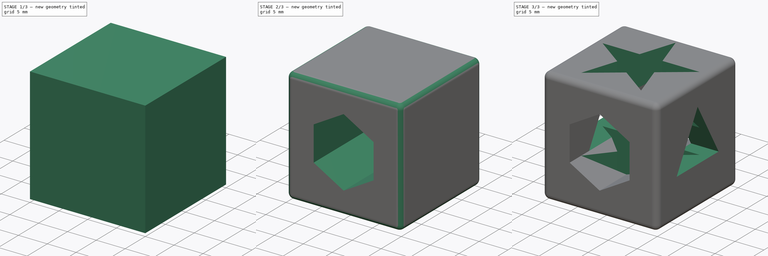
[diagram: build sequence overview — one tinted view per stage of 3, left to right]
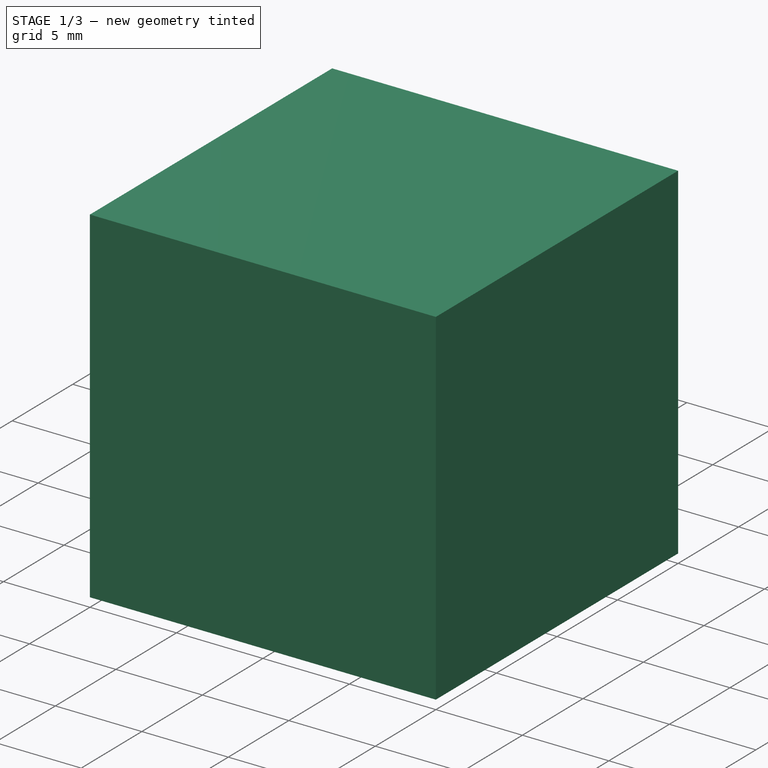
[diagram: stage 1 of 3 — iso view after this stage's code; geometry added in this stage tinted green]
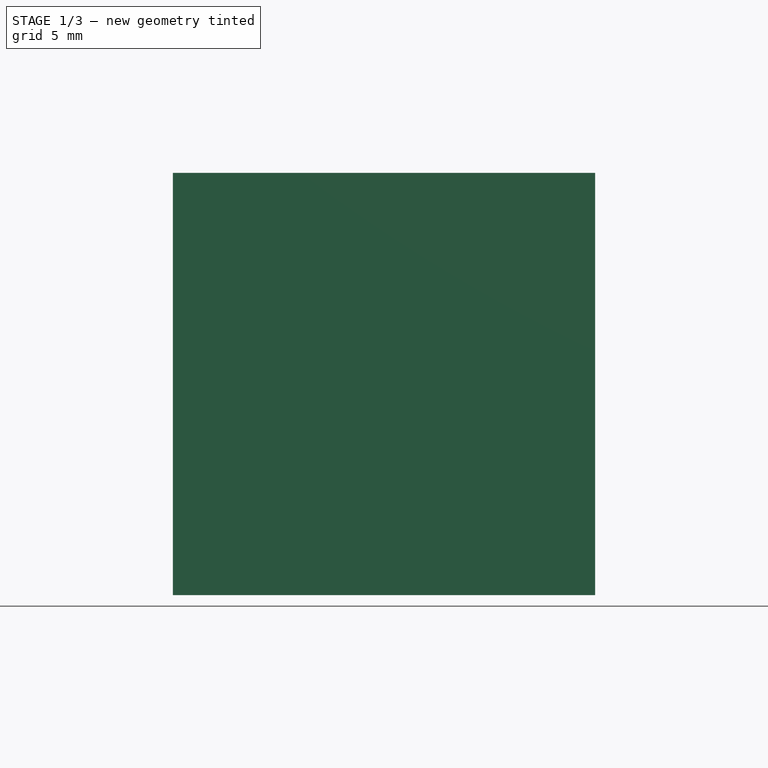
[diagram: stage 1 of 3 — front view after this stage's code; geometry added in this stage tinted green]
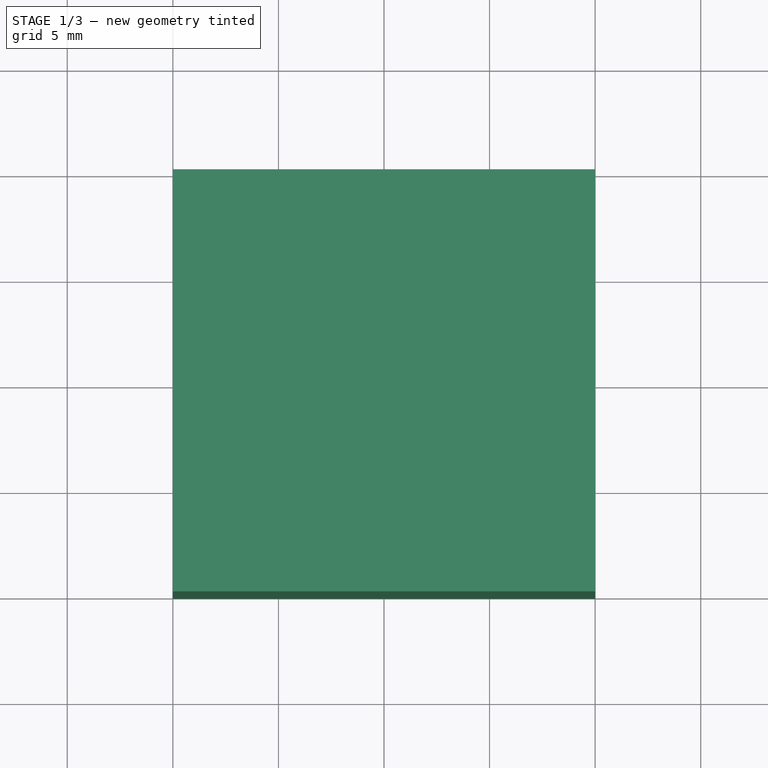
[diagram: stage 1 of 3 — top view after this stage's code; geometry added in this stage tinted green]
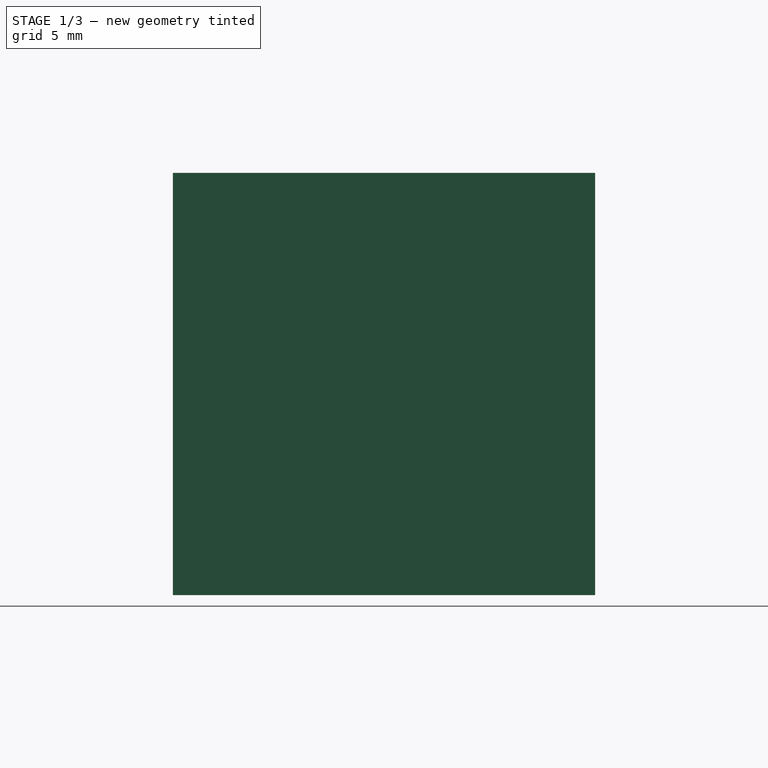
[diagram: stage 1 of 3 — right view after this stage's code; geometry added in this stage tinted green]
FCSTD DOCUMENT  (FreeCAD 0.17RUnknown)
Label: test101
License: All rights reserved
LicenseURL: http://en.wikipedia.org/wiki/All_rights_reserved
objects: Sketcher::SketchObject×3, PartDesign::Pocket×3, Part::Box×1, PartDesign::FeatureBase×1, PartDesign::Fillet×1, PartDesign::Body×1
note: 13 computed .brp shape members not serialized (recipe doc carries the construction recipe); baked Part::Feature solids carry a one-line shape summary decoded from their .brp

FEATURE [Part::Box] Box  label="Cube"
  AttacherType = Attacher::AttachEngine3D
  Height = 20
  Length = 20
  Width = 20
FEATURE [PartDesign::FeatureBase] BaseFeature
  BaseFeature = -> Box
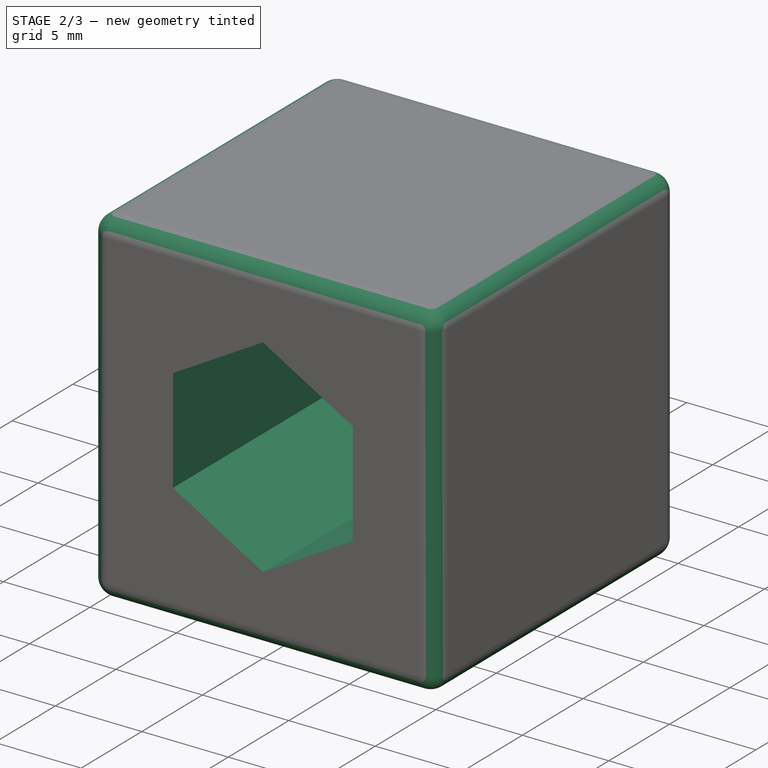
[diagram: stage 2 of 3 — iso view after this stage's code; geometry added in this stage tinted green]
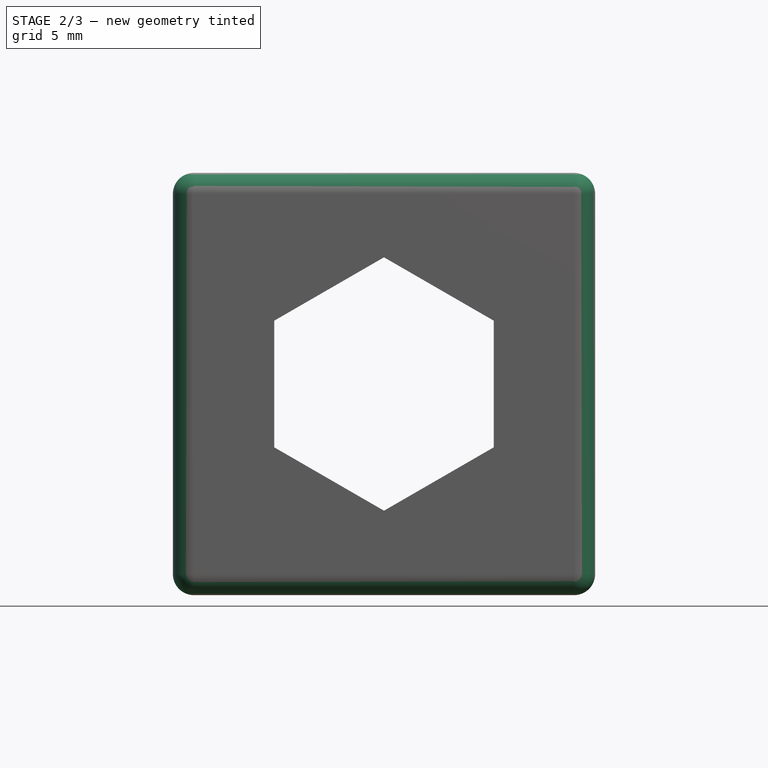
[diagram: stage 2 of 3 — front view after this stage's code; geometry added in this stage tinted green]
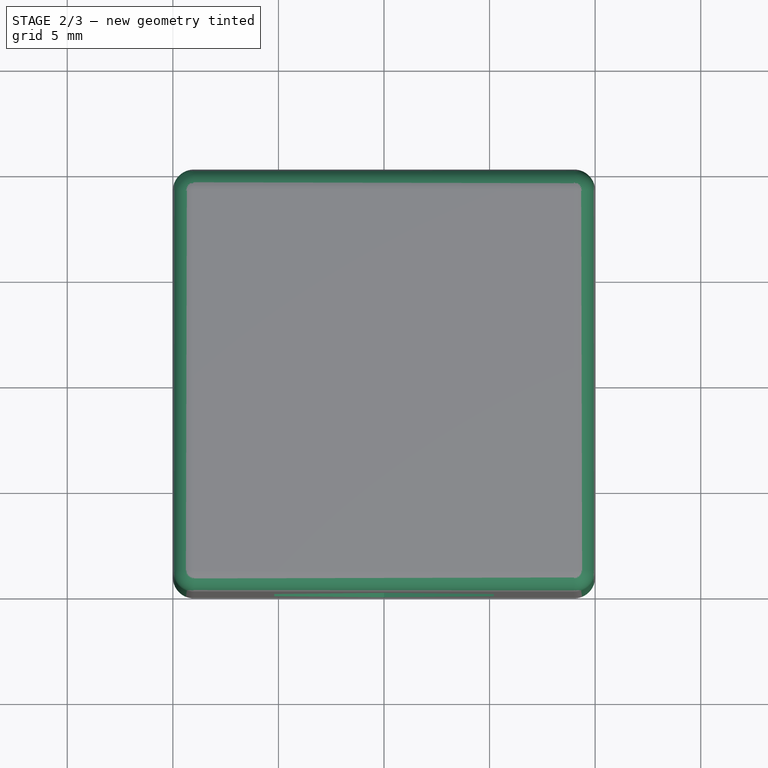
[diagram: stage 2 of 3 — top view after this stage's code; geometry added in this stage tinted green]
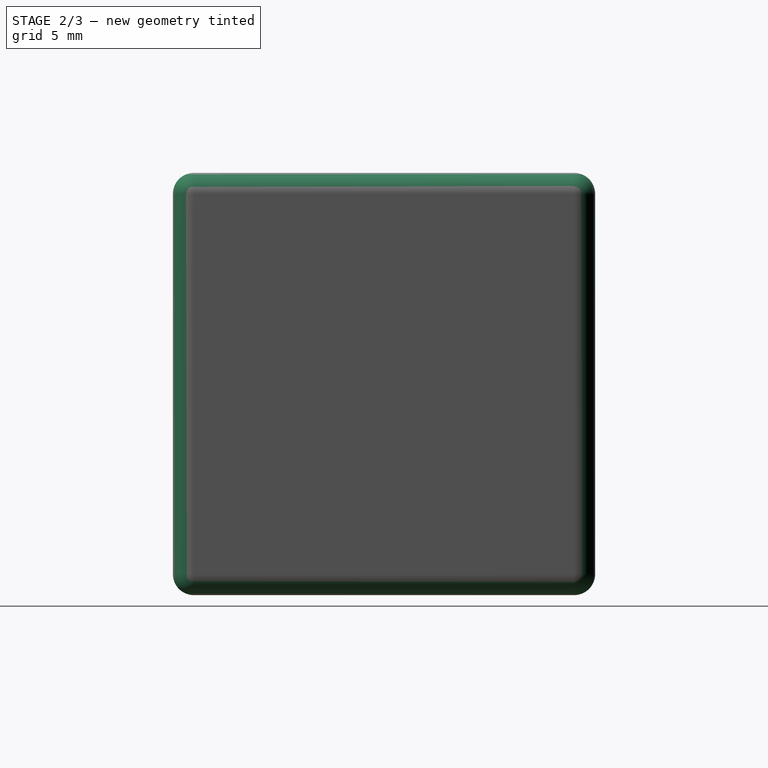
[diagram: stage 2 of 3 — right view after this stage's code; geometry added in this stage tinted green]
FEATURE [PartDesign::Fillet] Fillet
  Base = -> BaseFeature [Face5,Face1,Face3,Face2,Face4,Face6]
  BaseFeature = -> BaseFeature
  Radius = 1
FEATURE [Sketcher::SketchObject] Sketch
  ExternalGeometry = -> [Fillet]
  MapMode = 5
  Placement = pos=(0,0,0) rot=(1,0,0;1.5708rad)
  Support = -> [Fillet]
  sketch-geometry (11):
    g0: LineSegment [constr] StartX=10 StartY=19 StartZ=0 EndX=10 EndY=10 EndZ=0
    g1: LineSegment [constr] StartX=10 StartY=10 StartZ=0 EndX=19 EndY=10 EndZ=0
    g2: LineSegment [constr] StartX=10 StartY=10 StartZ=0 EndX=10 EndY=1 EndZ=0
    g3: LineSegment [constr] StartX=10 StartY=10 StartZ=0 EndX=1 EndY=10 EndZ=0
    g4: LineSegment StartX=15.1962 StartY=7 StartZ=0 EndX=15.1962 EndY=13 EndZ=0
    g5: LineSegment StartX=15.1962 StartY=13 StartZ=0 EndX=10 EndY=16 EndZ=0
    g6: LineSegment StartX=10 StartY=16 StartZ=0 EndX=4.80385 EndY=13 EndZ=0
    g7: LineSegment StartX=4.80385 StartY=13 StartZ=0 EndX=4.80385 EndY=7 EndZ=0
    g8: LineSegment StartX=4.80385 StartY=7 StartZ=0 EndX=10 EndY=4 EndZ=0
    g9: LineSegment StartX=10 StartY=4 StartZ=0 EndX=15.1962 EndY=7 EndZ=0
    g10: Circle [constr] CenterX=10 CenterY=10 CenterZ=0 NormalX=0 NormalY=0 NormalZ=1 AngleXU=0 Radius=6
  constraints (32):
    c: Vertical(g2)
    c: PointOnObject(g3,g-6)
    c: PointOnObject(g3,g0)
    c: PointOnObject(g1,g0)
    c: PointOnObject(g2,g0)
    c: PointOnObject(g0,g-3)
    c: PointOnObject(g1,g-4)
    c: PointOnObject(g2,g-5)
    c: Perpendicular(g1,g0)
    c: Perpendicular(g2,g1)
    c: Perpendicular(g2,g3)
    c: Coincident(g1,g0)
    c: Coincident(g0,g3)
    c: Coincident(g2,g0)
    c: Equal(g3,g1)
    c: Equal(g0,g2)
    c: Coincident(g4,g5)
    c: Coincident(g5,g6)
    c: Coincident(g6,g7)
    c: Coincident(g7,g8)
    c: Coincident(g8,g9)
    c: Coincident(g9,g4)
    c: Equal(g4, g5-g9) x5
    c: PointOnObject(g4,g10)
    c: PointOnObject(g5,g10)
    c: PointOnObject(g6,g10)
    c: PointOnObject(g7,g10)
    c: PointOnObject(g8,g10)
    c: PointOnObject(g9,g10)
    c: Coincident(g10,g0)
    c: Radius(g10) = 6
    c: Vertical(g7)
FEATURE [PartDesign::Pocket] Pocket
  BaseFeature = -> Fillet
  Length = 5
  Length2 = 100
  Profile = -> Sketch
  Type = 1
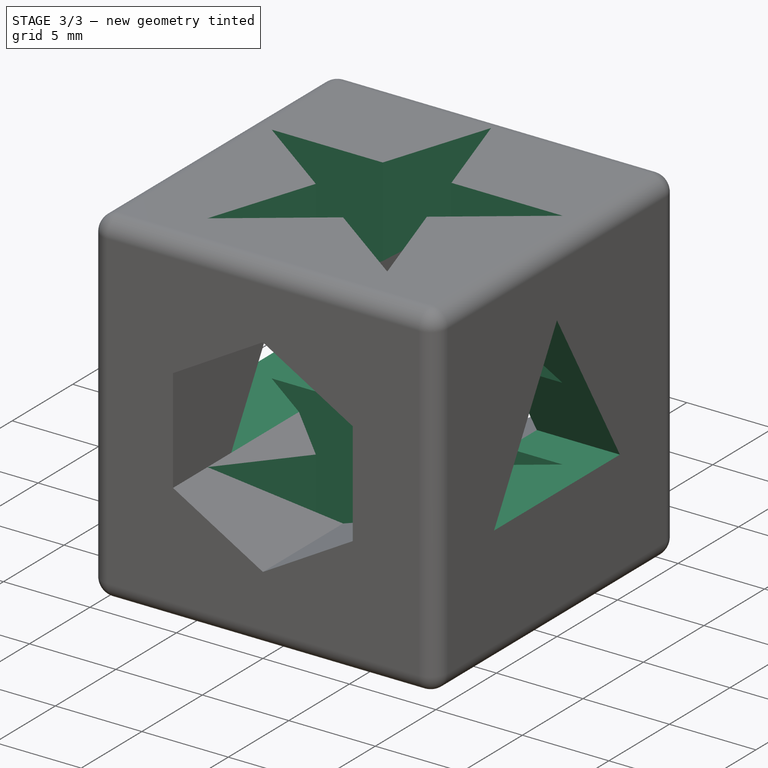
[diagram: stage 3 of 3 — iso view after this stage's code; geometry added in this stage tinted green]
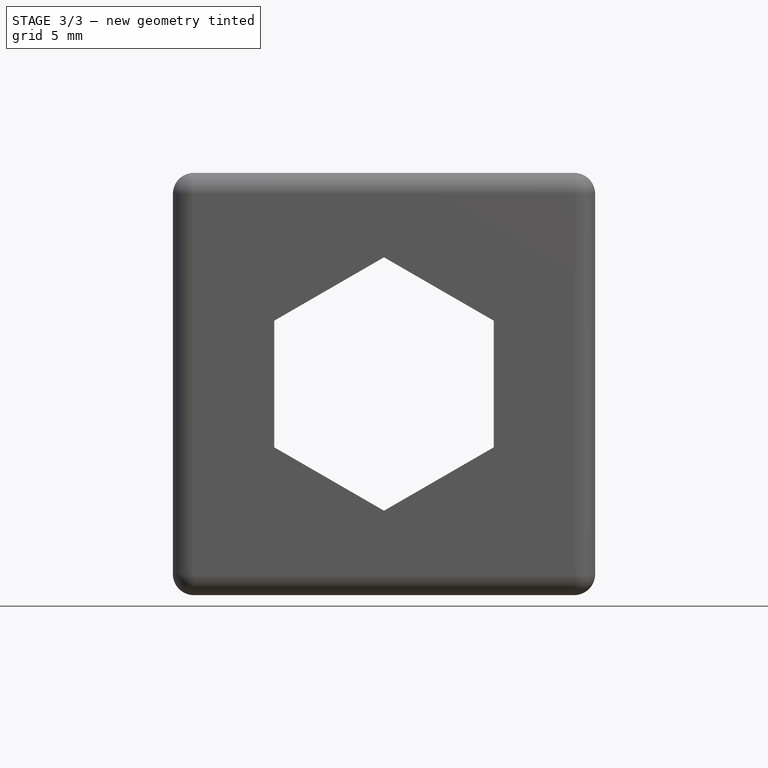
[diagram: stage 3 of 3 — front view after this stage's code; geometry added in this stage tinted green]
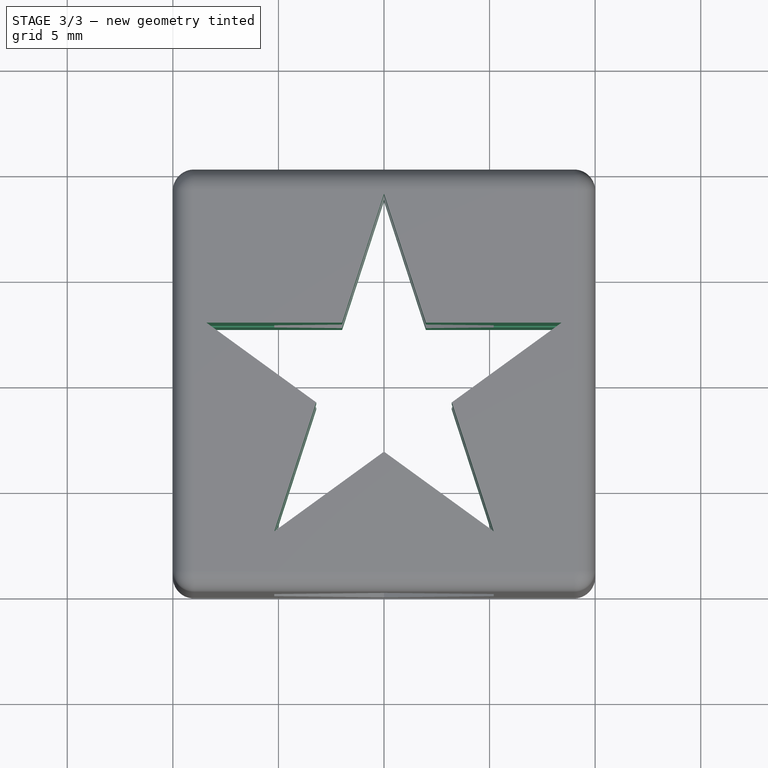
[diagram: stage 3 of 3 — top view after this stage's code; geometry added in this stage tinted green]
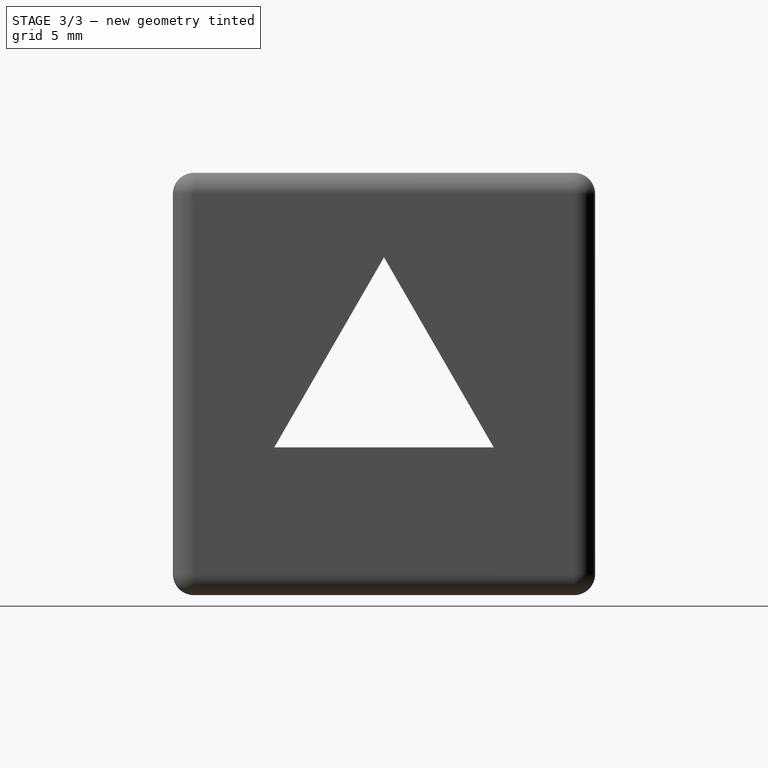
[diagram: stage 3 of 3 — right view after this stage's code; geometry added in this stage tinted green]
FEATURE [Sketcher::SketchObject] Sketch001
  ExternalGeometry = -> [Pocket]
  MapMode = 5
  Placement = pos=(20,0,0) rot=(0.57735,0.57735,0.57735;2.0944rad)
  Support = -> [Pocket]
  sketch-geometry (6):
    g0: LineSegment StartX=15.1962 StartY=7 StartZ=0 EndX=10 EndY=16 EndZ=0
    g1: LineSegment StartX=10 StartY=16 StartZ=0 EndX=4.80385 EndY=7 EndZ=0
    g2: LineSegment StartX=4.80385 StartY=7 StartZ=0 EndX=15.1962 EndY=7 EndZ=0
    g3: Circle [constr] CenterX=10 CenterY=10 CenterZ=0 NormalX=0 NormalY=0 NormalZ=1 AngleXU=0 Radius=6
    g4: LineSegment [constr] StartX=1 StartY=1 StartZ=0 EndX=19 EndY=19 EndZ=0
    g5: LineSegment [constr] StartX=1 StartY=19 StartZ=0 EndX=19 EndY=1 EndZ=0
  constraints (16):
    c: Coincident(g0,g1)
    c: Coincident(g1,g2)
    c: Coincident(g2,g0)
    c: Equal(g0,g1)
    c: Equal(g0,g2)
    c: PointOnObject(g0,g3)
    c: PointOnObject(g1,g3)
    c: PointOnObject(g2,g3)
    c: Coincident(g4,g-4)
    c: Coincident(g4,g-3)
    c: Coincident(g5,g-3)
    c: Coincident(g5,g-4)
    c: PointOnObject(g3,g5)
    c: PointOnObject(g3,g4)
    c: Radius(g3) = 6
    c: Horizontal(g2)
FEATURE [PartDesign::Pocket] Pocket001
  BaseFeature = -> Pocket
  Length = 5
  Length2 = 100
  Profile = -> Sketch001
  Type = 1
FEATURE [Sketcher::SketchObject] Sketch002
  ExternalGeometry = -> [Pocket001]
  MapMode = 5
  Placement = pos=(0,0,20) rot=(0,0,1;0rad)
  Support = -> [Pocket001]
  sketch-geometry (18):
    g0: LineSegment [constr] StartX=1 StartY=19 StartZ=0 EndX=19 EndY=1 EndZ=0
    g1: LineSegment [constr] StartX=1 StartY=1 StartZ=0 EndX=19 EndY=19 EndZ=0
    g2: LineSegment [constr] StartX=13.2114 StartY=8.95655 StartZ=0 EndX=11.9848 EndY=12.7318 EndZ=0
    g3: LineSegment [constr] StartX=11.9848 StartY=12.7318 StartZ=0 EndX=8.01525 EndY=12.7318 EndZ=0
    g4: LineSegment [constr] StartX=8.01525 StartY=12.7318 StartZ=0 EndX=6.7886 EndY=8.95655 EndZ=0
    g5: LineSegment [constr] StartX=6.7886 StartY=8.95655 StartZ=0 EndX=10 EndY=6.62334 EndZ=0
    g6: LineSegment [constr] StartX=10 StartY=6.62334 StartZ=0 EndX=13.2114 EndY=8.95655 EndZ=0
    g7: Circle [constr] CenterX=10 CenterY=10 CenterZ=0 NormalX=0 NormalY=0 NormalZ=1 AngleXU=0 Radius=3.37666
    g8: LineSegment StartX=13.2114 StartY=8.95655 StartZ=0 EndX=18.4076 EndY=12.7318 EndZ=0
    g9: LineSegment StartX=18.4076 StartY=12.7318 StartZ=0 EndX=11.9848 EndY=12.7318 EndZ=0
    g10: LineSegment StartX=11.9848 StartY=12.7318 StartZ=0 EndX=10 EndY=18.8402 EndZ=0
    g11: LineSegment StartX=10 StartY=18.8402 StartZ=0 EndX=8.01525 EndY=12.7318 EndZ=0
    g12: LineSegment StartX=8.01525 StartY=12.7318 StartZ=0 EndX=1.59245 EndY=12.7318 EndZ=0
    g13: LineSegment StartX=1.59245 StartY=12.7318 StartZ=0 EndX=6.7886 EndY=8.95655 EndZ=0
    g14: LineSegment StartX=6.7886 StartY=8.95655 StartZ=0 EndX=4.80385 EndY=2.84811 EndZ=0
    g15: LineSegment StartX=4.80385 StartY=2.84811 StartZ=0 EndX=10 EndY=6.62334 EndZ=0
    g16: LineSegment StartX=10 StartY=6.62334 StartZ=0 EndX=15.1962 EndY=2.84811 EndZ=0
    g17: LineSegment StartX=15.1962 StartY=2.84811 StartZ=0 EndX=13.2114 EndY=8.95655 EndZ=0
  constraints (44):
    c: Coincident(g0,g-4)
    c: Coincident(g1,g-4)
    c: Coincident(g1,g-3)
    c: Coincident(g0,g-3)
    c: Coincident(g2,g3)
    c: Coincident(g3,g4)
    c: Coincident(g4,g5)
    c: Coincident(g5,g6)
    c: Coincident(g6,g2)
    c: Equal(g2, g3-g6) x4
    c: PointOnObject(g2,g7)
    c: PointOnObject(g3,g7)
    c: PointOnObject(g4,g7)
    c: PointOnObject(g5,g7)
    c: PointOnObject(g6,g7)
    c: PointOnObject(g7,g1)
    c: PointOnObject(g7,g0)
    c: Coincident(g2,g8)
    c: Coincident(g8,g9)
    c: Coincident(g9,g2)
    c: Coincident(g9,g10)
    c: Coincident(g10,g11)
    c: Coincident(g11,g3)
    c: Coincident(g11,g12)
    c: Coincident(g12,g13)
    c: Coincident(g13,g4)
    c: Coincident(g13,g14)
    c: Coincident(g14,g15)
    c: Coincident(g15,g5)
    c: Coincident(g15,g16)
    c: Coincident(g16,g17)
    c: Coincident(g17,g8)
    c: Parallel(g12,g3)
    c: Parallel(g9,g3)
    c: Parallel(g8,g6)
    c: Parallel(g15,g6)
    c: Parallel(g16,g5)
    c: Parallel(g13,g5)
    c: Parallel(g14,g4)
    c: Parallel(g11,g4)
    c: Parallel(g10,g2)
    c: Parallel(g17,g2)
    c: Horizontal(g3)
    c: PointOnObject(g14,g-5)
FEATURE [PartDesign::Pocket] Pocket002
  BaseFeature = -> Pocket001
  Length = 5
  Length2 = 100
  Profile = -> Sketch002
  Refine = true
  Type = 1
FEATURE [PartDesign::Body] Body
  BaseFeature = -> Box
  Group = -> [BaseFeature,Fillet,Sketch,Pocket,Sketch001,Pocket001,Sketch002,Pocket002]
  Origin = -> Origin
  Tip = -> Pocket002
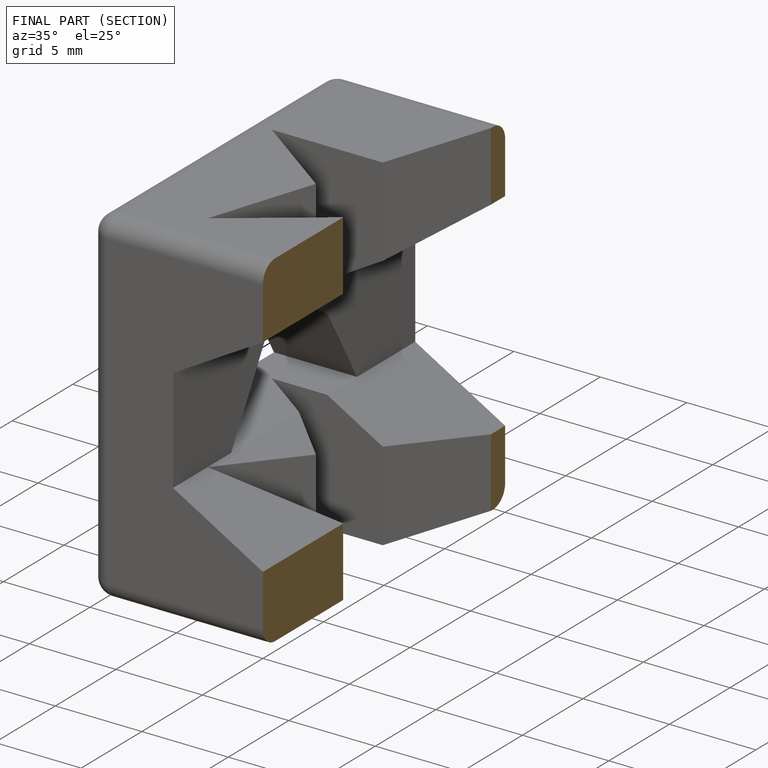
[diagram: finished part — half-section view (interior)]
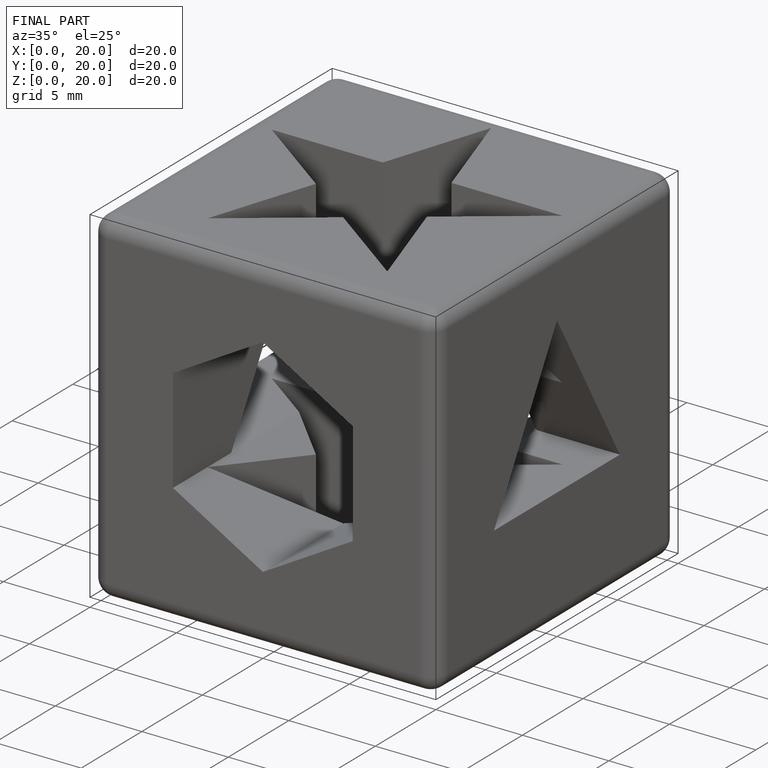
[diagram: finished part — iso view with bounding-box wireframe]
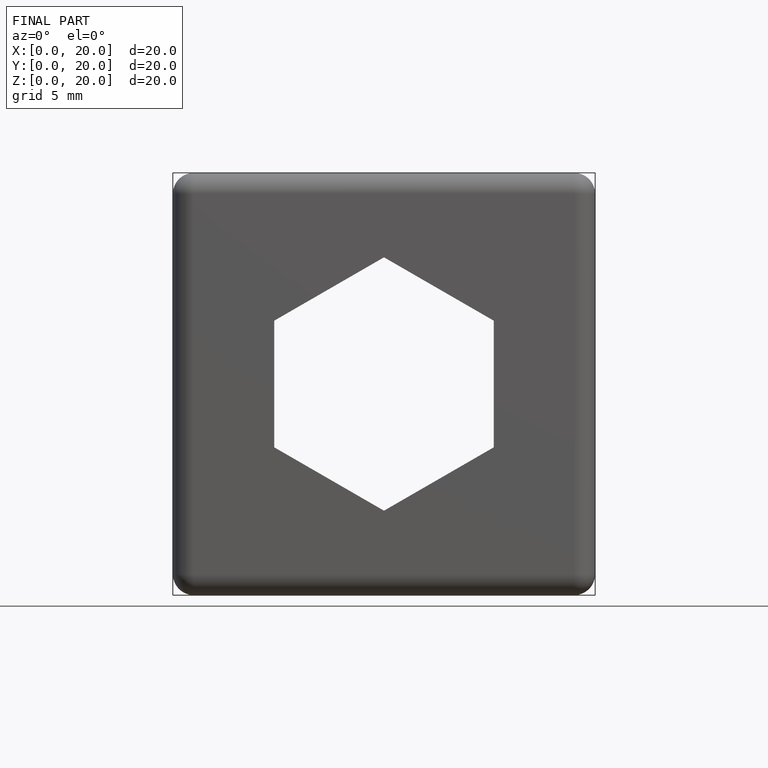
[diagram: finished part — front view with bounding-box wireframe]
